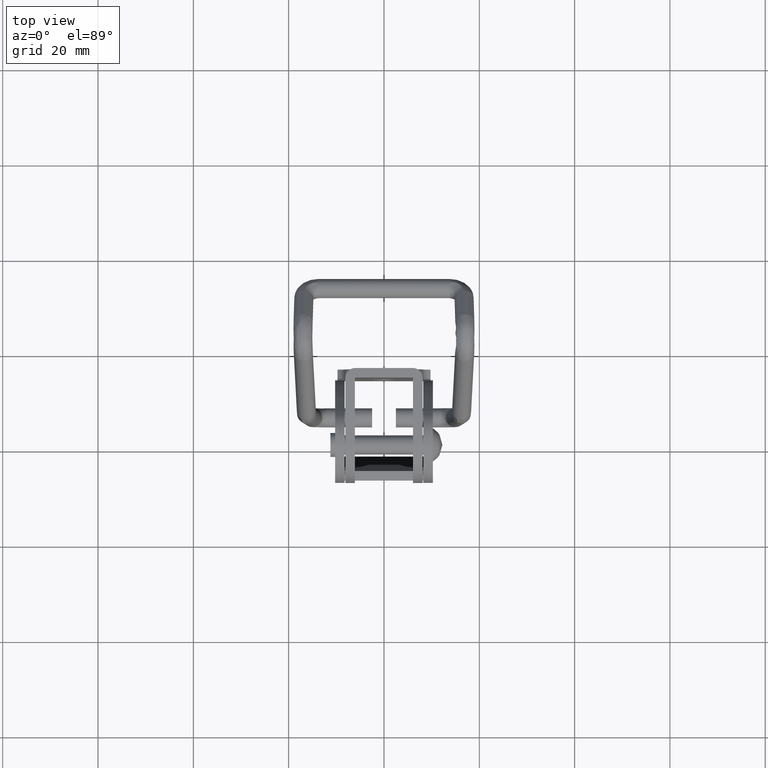
[diagram: clean part render]
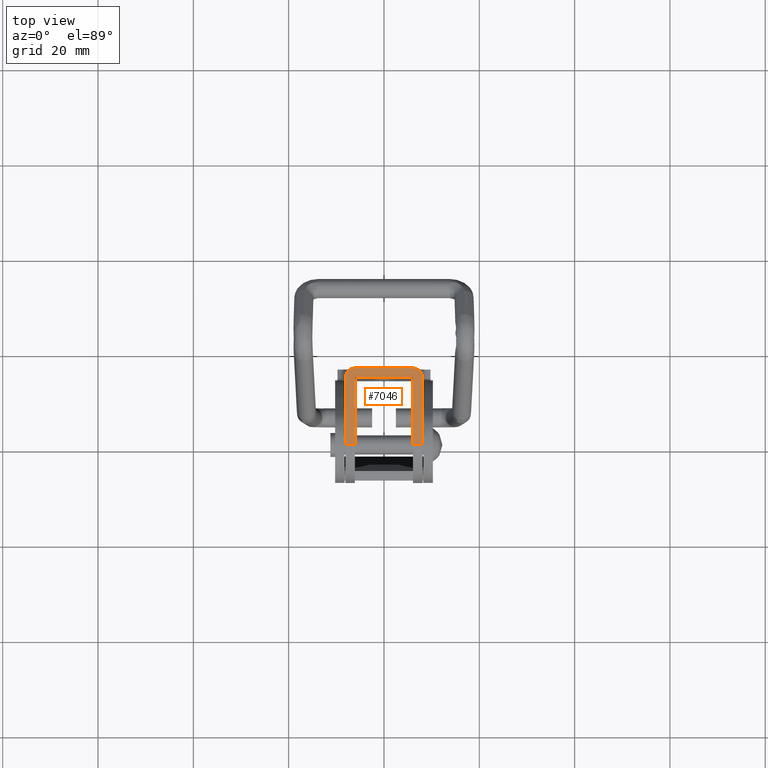
[diagram: same view with one face highlighted and labeled with its STEP entity id]
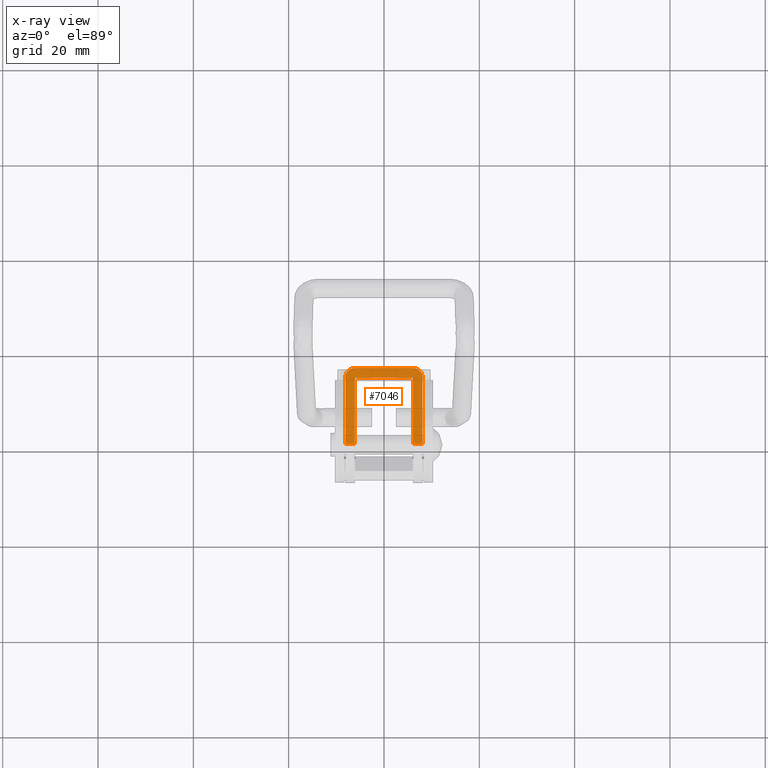
[diagram: x-ray of the same camera — body ghosted, the highlighted face saturated]
A machine part, top view. The second image highlights one B-rep face of the part: STEP entity #7046.
The next image is the same camera in x-ray: the body ghosted, the highlighted face saturated — about 0% of this face is hidden behind the body in this view.
In plain terms, the highlighted face is a freeform B-spline surface patch.
Its self-contained STEP definition (entity closure, byte-faithful):
#6419=CARTESIAN_POINT('',(8.099999999999911,14.0,8.0));
#6420=VERTEX_POINT('',#6419);
#6431=CARTESIAN_POINT('',(6.099999999999910,16.0,8.0));
#6432=VERTEX_POINT('',#6431);
#6443=CARTESIAN_POINT('',(8.099999999999911,14.0,8.0));
#6444=CARTESIAN_POINT('',(8.100288653659316,14.261842952299499,8.000000000000016));
#6445=CARTESIAN_POINT('',(8.008684300044443,14.719766347979339,7.999999999999965));
#6446=CARTESIAN_POINT('',(7.660076110306282,15.301487933891350,7.999999999999956));
#6447=CARTESIAN_POINT('',(7.237958376886676,15.674674786304349,8.000000000000092));
#6448=CARTESIAN_POINT('',(6.705317125725347,15.934585261351870,7.999999999999896));
#6449=CARTESIAN_POINT('',(6.329097776277501,16.000169796030811,8.000000000000050));
#6450=CARTESIAN_POINT('',(6.099999999999910,16.0,8.0));
#6451=B_SPLINE_CURVE_WITH_KNOTS('',3,(#6443,#6444,#6445,#6446,#6447,#6448,#6449,#6450),.UNSPECIFIED.,.F.,.U.,(4,1,1,1,1,4),(0.000000287143918,0.785418880341849,1.374491034964457,2.012607652304677,2.454432787567044,3.141671488698351),.UNSPECIFIED.);
#6452=EDGE_CURVE('',#6420,#6432,#6451,.T.);
#6486=CARTESIAN_POINT('',(-6.100000000000001,16.0,8.0));
#6487=VERTEX_POINT('',#6486);
#6488=CARTESIAN_POINT('',(-8.100000000000000,14.0,8.0));
#6489=VERTEX_POINT('',#6488);
#6490=CARTESIAN_POINT('',(-6.100000000000001,16.0,8.0));
#6491=CARTESIAN_POINT('',(-6.296352540793955,16.000080686850549,7.999999999999995));
#6492=CARTESIAN_POINT('',(-6.639918225837937,15.948982662909010,8.000000000000012));
#6493=CARTESIAN_POINT('',(-7.108987110102243,15.747902777666830,7.999999999999994));
#6494=CARTESIAN_POINT('',(-7.492991517254891,15.463108034977131,7.999999999999994));
#6495=CARTESIAN_POINT('',(-7.848728592775498,15.029856198416979,8.000000000000005));
#6496=CARTESIAN_POINT('',(-8.058360915245855,14.523633467833720,7.999999999999998));
#6497=CARTESIAN_POINT('',(-8.100009223504175,14.147249302184109,7.999999999999998));
#6498=CARTESIAN_POINT('',(-8.100000000000000,14.0,8.0));
#6499=B_SPLINE_CURVE_WITH_KNOTS('',3,(#6490,#6491,#6492,#6493,#6494,#6495,#6496,#6497,#6498),.UNSPECIFIED.,.F.,.U.,(4,1,1,1,1,1,4),(0.000000287144977,0.589049661665375,1.030861965921117,1.521787399406942,2.012607652304772,2.699899733574735,3.141671488698345),.UNSPECIFIED.);
#6500=EDGE_CURVE('',#6487,#6489,#6499,.T.);
#6545=CARTESIAN_POINT('',(-8.100000000000000,4.898425E-016,8.0));
#6546=VERTEX_POINT('',#6545);
#6602=CARTESIAN_POINT('',(-6.100000000000001,4.898425E-016,8.0));
#6603=VERTEX_POINT('',#6602);
#6618=CARTESIAN_POINT('',(-6.100000000000001,4.898425E-016,8.0));
#6619=CARTESIAN_POINT('',(-8.100000000000000,4.898425E-016,8.0));
#6620=QUASI_UNIFORM_CURVE('',1,(#6618,#6619),.UNSPECIFIED.,.F.,.U.);
#6621=EDGE_CURVE('',#6603,#6546,#6620,.T.);
#6690=CARTESIAN_POINT('',(8.100000000000000,4.898425E-016,8.0));
#6691=VERTEX_POINT('',#6690);
#6706=CARTESIAN_POINT('',(6.100000000000001,4.898425E-016,8.0));
#6707=VERTEX_POINT('',#6706);
#6708=CARTESIAN_POINT('',(6.100000000000001,4.898425E-016,8.0));
#6709=CARTESIAN_POINT('',(8.100000000000000,4.898425E-016,8.0));
#6710=QUASI_UNIFORM_CURVE('',1,(#6708,#6709),.UNSPECIFIED.,.F.,.U.);
#6711=EDGE_CURVE('',#6707,#6691,#6710,.T.);
#6799=CARTESIAN_POINT('',(6.099999999999910,16.0,8.0));
#6800=CARTESIAN_POINT('',(-6.100000000000001,16.0,8.0));
#6801=QUASI_UNIFORM_CURVE('',1,(#6799,#6800),.UNSPECIFIED.,.F.,.U.);
#6802=EDGE_CURVE('',#6432,#6487,#6801,.T.);
#7005=CARTESIAN_POINT('',(8.909190424823283,-0.799199968988894,8.0));
#7006=CARTESIAN_POINT('',(-8.909190424823283,-0.799199968988894,8.0));
#7007=CARTESIAN_POINT('',(8.909190424823283,16.799200398142339,8.0));
#7008=CARTESIAN_POINT('',(-8.909190424823283,16.799200398142339,8.0));
#7009=B_SPLINE_SURFACE_WITH_KNOTS('',1,1,((#7005,#7007),(#7006,#7008)),.UNSPECIFIED.,.F.,.F.,.U.,(2,2),(2,2),(0.0,17.818380849646569),(0.0,17.598400367131230),.UNSPECIFIED.);
#7010=ORIENTED_EDGE('',*,*,#6802,.T.);
#7011=ORIENTED_EDGE('',*,*,#6500,.T.);
#7012=CARTESIAN_POINT('',(-8.100000000000000,4.898425E-016,8.0));
#7013=CARTESIAN_POINT('',(-8.100000000000000,14.0,8.0));
#7014=QUASI_UNIFORM_CURVE('',1,(#7012,#7013),.UNSPECIFIED.,.F.,.U.);
#7015=EDGE_CURVE('',#6546,#6489,#7014,.T.);
#7016=ORIENTED_EDGE('',*,*,#7015,.F.);
#7017=ORIENTED_EDGE('',*,*,#6621,.F.);
#7018=CARTESIAN_POINT('',(-6.100000000000001,14.0,8.0));
#7019=VERTEX_POINT('',#7018);
#7020=CARTESIAN_POINT('',(-6.100000000000001,4.898425E-016,8.0));
#7021=CARTESIAN_POINT('',(-6.100000000000001,14.0,8.0));
#7022=QUASI_UNIFORM_CURVE('',1,(#7020,#7021),.UNSPECIFIED.,.F.,.U.);
#7023=EDGE_CURVE('',#6603,#7019,#7022,.T.);
#7024=ORIENTED_EDGE('',*,*,#7023,.T.);
#7025=CARTESIAN_POINT('',(6.100000000000001,14.0,8.0));
#7026=VERTEX_POINT('',#7025);
#7027=CARTESIAN_POINT('',(6.100000000000001,14.0,8.0));
#7028=CARTESIAN_POINT('',(-6.100000000000001,14.0,8.0));
#7029=QUASI_UNIFORM_CURVE('',1,(#7027,#7028),.UNSPECIFIED.,.F.,.U.);
#7030=EDGE_CURVE('',#7026,#7019,#7029,.T.);
#7031=ORIENTED_EDGE('',*,*,#7030,.F.);
#7032=CARTESIAN_POINT('',(6.100000000000001,4.898425E-016,8.0));
#7033=CARTESIAN_POINT('',(6.100000000000001,14.0,8.0));
#7034=QUASI_UNIFORM_CURVE('',1,(#7032,#7033),.UNSPECIFIED.,.F.,.U.);
#7035=EDGE_CURVE('',#6707,#7026,#7034,.T.);
#7036=ORIENTED_EDGE('',*,*,#7035,.F.);
#7037=ORIENTED_EDGE('',*,*,#6711,.T.);
#7038=CARTESIAN_POINT('',(8.100000000000000,4.898425E-016,8.0));
#7039=CARTESIAN_POINT('',(8.099999999999911,14.0,8.0));
#7040=QUASI_UNIFORM_CURVE('',1,(#7038,#7039),.UNSPECIFIED.,.F.,.U.);
#7041=EDGE_CURVE('',#6691,#6420,#7040,.T.);
#7042=ORIENTED_EDGE('',*,*,#7041,.T.);
#7043=ORIENTED_EDGE('',*,*,#6452,.T.);
#7044=EDGE_LOOP('',(#7010,#7011,#7016,#7017,#7024,#7031,#7036,#7037,#7042,#7043));
#7045=FACE_OUTER_BOUND('',#7044,.T.);
#7046=ADVANCED_FACE('',(#7045),#7009,.F.);